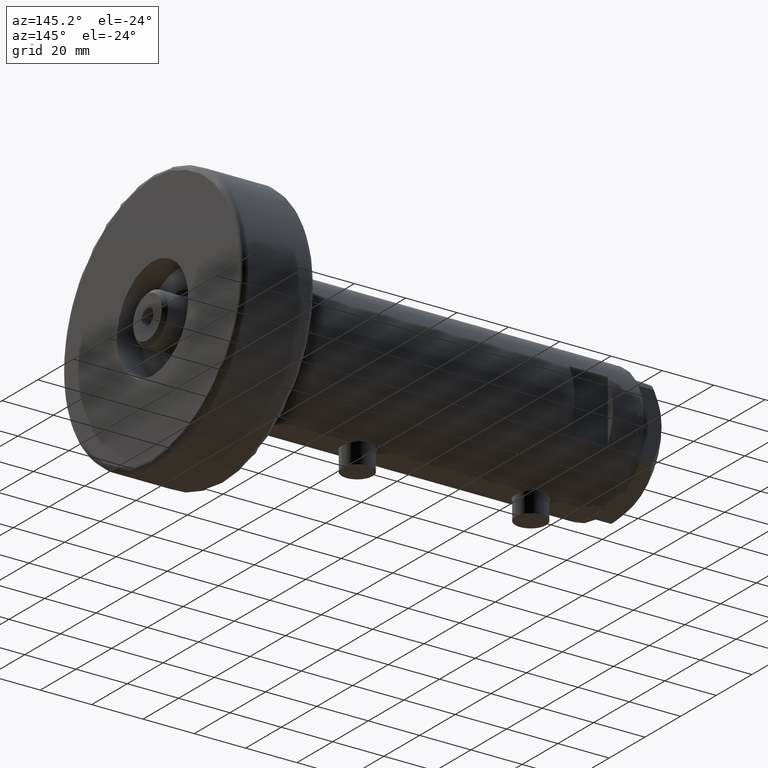
[diagram: clean part render]
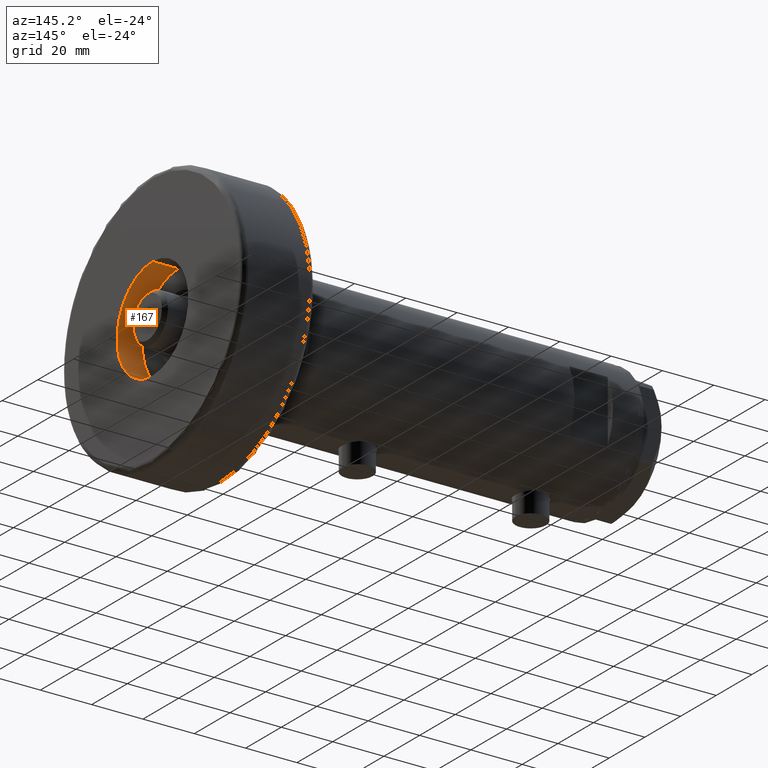
[diagram: same view with one face highlighted and labeled with its STEP entity id]
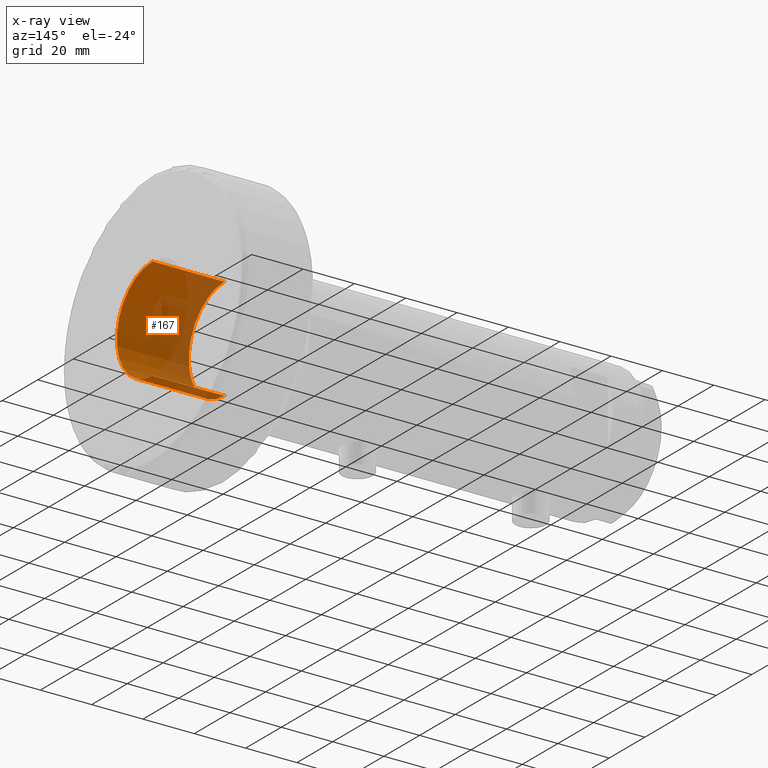
[diagram: x-ray of the same camera — body ghosted, the highlighted face saturated]
A machine part, auxiliary view. The second image highlights one B-rep face of the part: STEP entity #167.
The next image is the same camera in x-ray: the body ghosted, the highlighted face saturated — about 45% of this face is hidden behind the body in this view.
In plain terms, the highlighted cylindrical surface (partial cylindrical patch) has radius 20 mm, axis along (1, 0, -0).
Its self-contained STEP definition (entity closure, byte-faithful):
#167 = ADVANCED_FACE ( 'NONE', ( #432 ), #3660, .F. ) ;
#432 = FACE_OUTER_BOUND ( 'NONE', #1048, .T. ) ;
#751 = EDGE_CURVE ( 'NONE', #3093, #2239, #3478, .T. ) ;
#801 = VERTEX_POINT ( 'NONE', #1822 ) ;
#867 = DIRECTION ( 'NONE',  ( 1.000000000000000000, 0.000000000000000000, 0.000000000000000000 ) ) ;
#1048 = EDGE_LOOP ( 'NONE', ( #4720, #2274, #5157, #1633 ) ) ;
#1123 = AXIS2_PLACEMENT_3D ( 'NONE', #1289, #2896, #4523 ) ;
#1153 = EDGE_CURVE ( 'NONE', #1640, #2239, #1269, .T. ) ;
#1238 = CARTESIAN_POINT ( 'NONE',  ( 20.00000000000000000, 0.000000000000000000, 0.000000000000000000 ) ) ;
#1248 = CARTESIAN_POINT ( 'NONE',  ( -20.00000000000000000, 2.449293598294706513E-15, 0.000000000000000000 ) ) ;
#1269 = CIRCLE ( 'NONE', #1700, 20.00000000000000000 ) ;
#1280 = DIRECTION ( 'NONE',  ( -0.000000000000000000, -0.000000000000000000, 1.000000000000000000 ) ) ;
#1289 = CARTESIAN_POINT ( 'NONE',  ( 0.000000000000000000, 0.000000000000000000, 0.000000000000000000 ) ) ;
#1308 = EDGE_CURVE ( 'NONE', #801, #1640, #2094, .T. ) ;
#1447 = VECTOR ( 'NONE', #4711, 1000.000000000000000 ) ;
#1633 = ORIENTED_EDGE ( 'NONE', *, *, #751, .F. ) ;
#1640 = VERTEX_POINT ( 'NONE', #1976 ) ;
#1655 = DIRECTION ( 'NONE',  ( -0.000000000000000000, -0.000000000000000000, 1.000000000000000000 ) ) ;
#1700 = AXIS2_PLACEMENT_3D ( 'NONE', #3666, #4883, #2236 ) ;
#1822 = CARTESIAN_POINT ( 'NONE',  ( -20.00000000000000000, 2.449293598294706513E-15, 0.000000000000000000 ) ) ;
#1976 = CARTESIAN_POINT ( 'NONE',  ( -20.00000000000000000, 2.449293598294706513E-15, 28.00000000000000000 ) ) ;
#2094 = LINE ( 'NONE', #1248, #2204 ) ;
#2204 = VECTOR ( 'NONE', #1655, 1000.000000000000000 ) ;
#2236 = DIRECTION ( 'NONE',  ( 1.000000000000000000, 0.000000000000000000, 0.000000000000000000 ) ) ;
#2239 = VERTEX_POINT ( 'NONE', #2625 ) ;
#2242 = CARTESIAN_POINT ( 'NONE',  ( 20.00000000000000000, 0.000000000000000000, 0.000000000000000000 ) ) ;
#2274 = ORIENTED_EDGE ( 'NONE', *, *, #1308, .T. ) ;
#2625 = CARTESIAN_POINT ( 'NONE',  ( 20.00000000000000000, 0.000000000000000000, 28.00000000000000000 ) ) ;
#2709 = AXIS2_PLACEMENT_3D ( 'NONE', #3270, #1280, #867 ) ;
#2896 = DIRECTION ( 'NONE',  ( 0.000000000000000000, 0.000000000000000000, 1.000000000000000000 ) ) ;
#3093 = VERTEX_POINT ( 'NONE', #1238 ) ;
#3270 = CARTESIAN_POINT ( 'NONE',  ( 0.000000000000000000, 0.000000000000000000, 0.000000000000000000 ) ) ;
#3385 = CIRCLE ( 'NONE', #1123, 20.00000000000000000 ) ;
#3478 = LINE ( 'NONE', #2242, #1447 ) ;
#3660 = CYLINDRICAL_SURFACE ( 'NONE', #2709, 20.00000000000000000 ) ;
#3666 = CARTESIAN_POINT ( 'NONE',  ( 0.000000000000000000, 0.000000000000000000, 28.00000000000000000 ) ) ;
#4523 = DIRECTION ( 'NONE',  ( 1.000000000000000000, 0.000000000000000000, 0.000000000000000000 ) ) ;
#4552 = EDGE_CURVE ( 'NONE', #801, #3093, #3385, .T. ) ;
#4711 = DIRECTION ( 'NONE',  ( -0.000000000000000000, -0.000000000000000000, 1.000000000000000000 ) ) ;
#4720 = ORIENTED_EDGE ( 'NONE', *, *, #4552, .F. ) ;
#4883 = DIRECTION ( 'NONE',  ( 0.000000000000000000, 0.000000000000000000, 1.000000000000000000 ) ) ;
#5157 = ORIENTED_EDGE ( 'NONE', *, *, #1153, .T. ) ;